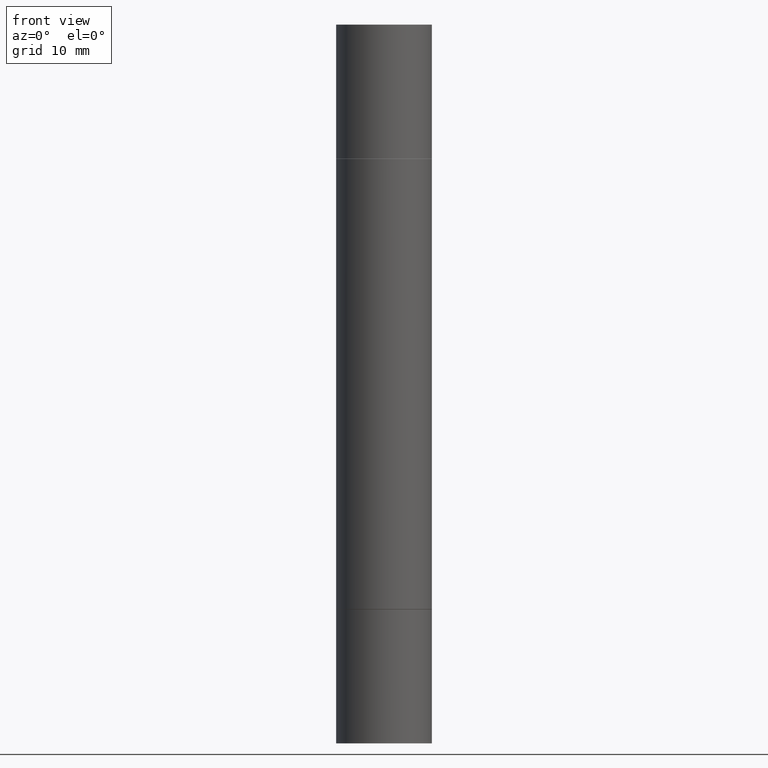
[diagram: clean part render]
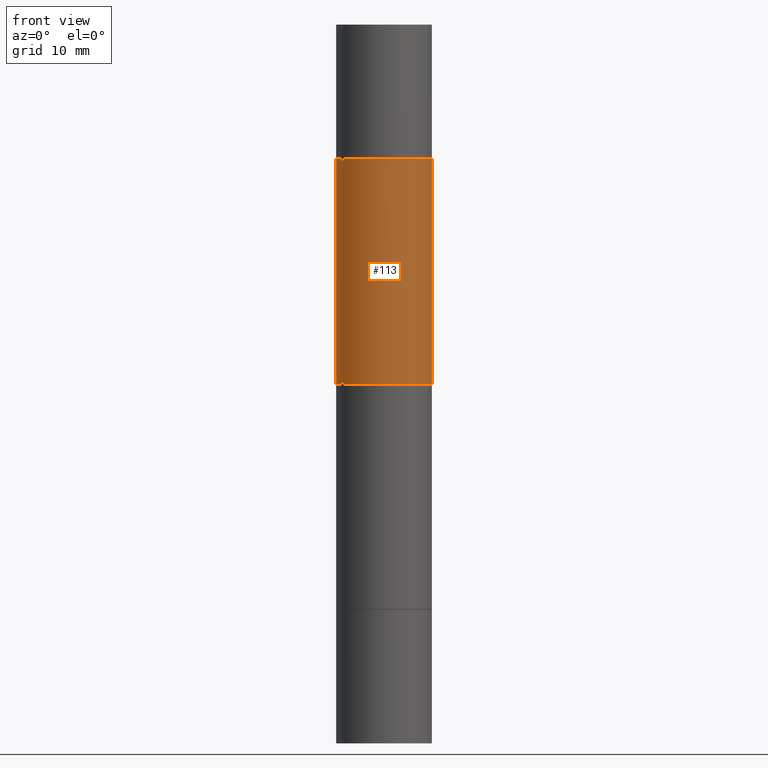
[diagram: same view with one face highlighted and labeled with its STEP entity id]
A machine part, front view. The second image highlights one B-rep face of the part: STEP entity #113.
In plain terms, the highlighted cylindrical surface (partial cylindrical patch) has radius 5 mm, axis along (-0, -0, -1).
Its self-contained STEP definition (entity closure, byte-faithful):
#6 = CARTESIAN_POINT ( 'NONE',  ( 0.000000000000000000, -1.031172645228302408E-14, -2.952799999999998981 ) ) ;
#9 = VERTEX_POINT ( 'NONE', #155 ) ;
#16 = FACE_OUTER_BOUND ( 'NONE', #538, .T. ) ;
#53 = CARTESIAN_POINT ( 'NONE',  ( 0.1968499999999998307, -1.168632265538556411E-14, -2.952799999999998981 ) ) ;
#80 = AXIS2_PLACEMENT_3D ( 'NONE', #273, #492, #581 ) ;
#84 = CARTESIAN_POINT ( 'NONE',  ( 0.1968499999999998307, -4.915354592592491624E-15, -1.476399999999999491 ) ) ;
#91 = EDGE_CURVE ( 'NONE', #587, #580, #371, .T. ) ;
#113 = ADVANCED_FACE ( 'NONE', ( #16 ), #264, .T. ) ;
#114 = DIRECTION ( 'NONE',  ( -2.445468806185136597E-29, -3.492890411551752677E-15, -1.000000000000000000 ) ) ;
#147 = VECTOR ( 'NONE', #542, 39.37007874015748143 ) ;
#155 = CARTESIAN_POINT ( 'NONE',  ( -0.1968500000000000250, -5.762046994505618475E-16, -0.5521999999999996911 ) ) ;
#159 = LINE ( 'NONE', #53, #606 ) ;
#201 = EDGE_CURVE ( 'NONE', #9, #580, #389, .T. ) ;
#207 = VERTEX_POINT ( 'NONE', #603 ) ;
#221 = EDGE_CURVE ( 'NONE', #9, #207, #474, .T. ) ;
#227 = DIRECTION ( 'NONE',  ( 1.000000000000000000, -6.982962677686264344E-15, 0.000000000000000000 ) ) ;
#246 = ORIENTED_EDGE ( 'NONE', *, *, #91, .F. ) ;
#248 = ORIENTED_EDGE ( 'NONE', *, *, #221, .F. ) ;
#264 = CYLINDRICAL_SURFACE ( 'NONE', #447, 0.1968499999999998307 ) ;
#273 = CARTESIAN_POINT ( 'NONE',  ( 3.610490145451734531E-29, -5.154823048668018475E-15, -1.476399999999999491 ) ) ;
#283 = CARTESIAN_POINT ( 'NONE',  ( -0.1968499999999998307, -2.190269358628626559E-15, -1.476399999999999491 ) ) ;
#297 = DIRECTION ( 'NONE',  ( 2.445468806185136597E-29, 3.492890411551752677E-15, 1.000000000000000000 ) ) ;
#308 = EDGE_CURVE ( 'NONE', #207, #587, #159, .T. ) ;
#371 = CIRCLE ( 'NONE', #80, 0.1968499999999998307 ) ;
#389 = LINE ( 'NONE', #400, #147 ) ;
#400 = CARTESIAN_POINT ( 'NONE',  ( -0.1968499999999998307, -8.961237421421701017E-15, -2.952799999999998981 ) ) ;
#447 = AXIS2_PLACEMENT_3D ( 'NONE', #6, #114, #227 ) ;
#462 = CARTESIAN_POINT ( 'NONE',  ( 5.870592416128037625E-29, -1.926693730311889446E-15, -0.5521999999999996911 ) ) ;
#474 = CIRCLE ( 'NONE', #503, 0.1968500000000000250 ) ;
#480 = ORIENTED_EDGE ( 'NONE', *, *, #308, .F. ) ;
#492 = DIRECTION ( 'NONE',  ( -0.000000000000000000, -3.492185875197449130E-15, -1.000000000000000000 ) ) ;
#499 = DIRECTION ( 'NONE',  ( 1.000000000000000000, -6.982962677686267499E-15, 0.000000000000000000 ) ) ;
#503 = AXIS2_PLACEMENT_3D ( 'NONE', #462, #297, #499 ) ;
#538 = EDGE_LOOP ( 'NONE', ( #248, #641, #246, #480 ) ) ;
#542 = DIRECTION ( 'NONE',  ( -2.445468806185136877E-29, -3.492890411551753071E-15, -1.000000000000000000 ) ) ;
#568 = DIRECTION ( 'NONE',  ( -2.445468806185136877E-29, -3.492890411551753071E-15, -1.000000000000000000 ) ) ;
#580 = VERTEX_POINT ( 'NONE', #283 ) ;
#581 = DIRECTION ( 'NONE',  ( 0.000000000000000000, 1.000000000000000000, -4.163344669033678790E-15 ) ) ;
#587 = VERTEX_POINT ( 'NONE', #84 ) ;
#603 = CARTESIAN_POINT ( 'NONE',  ( 0.1968500000000000250, -3.301289933414429871E-15, -0.5521999999999996911 ) ) ;
#606 = VECTOR ( 'NONE', #568, 39.37007874015748143 ) ;
#641 = ORIENTED_EDGE ( 'NONE', *, *, #201, .T. ) ;